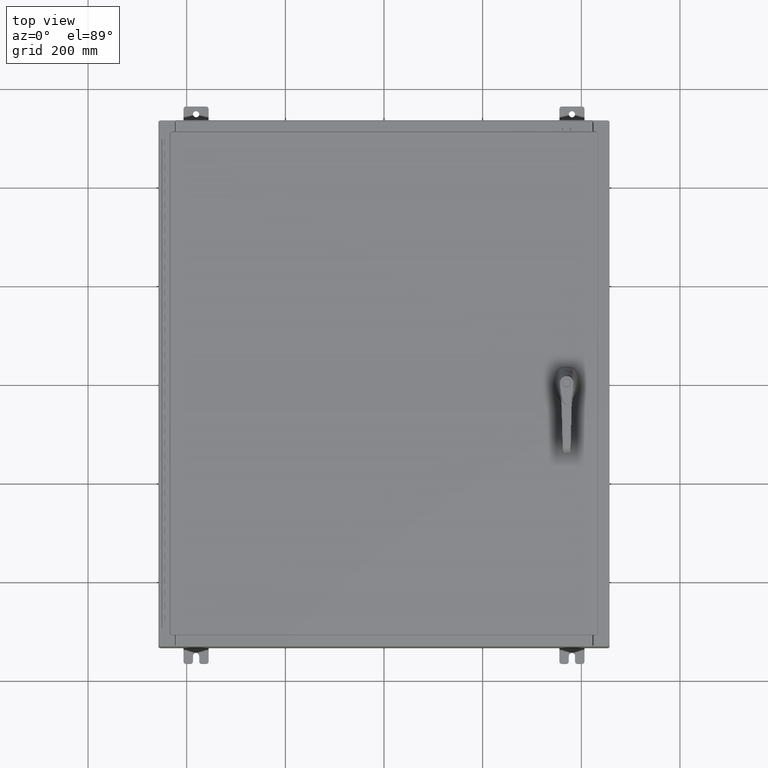
[diagram: clean part render]
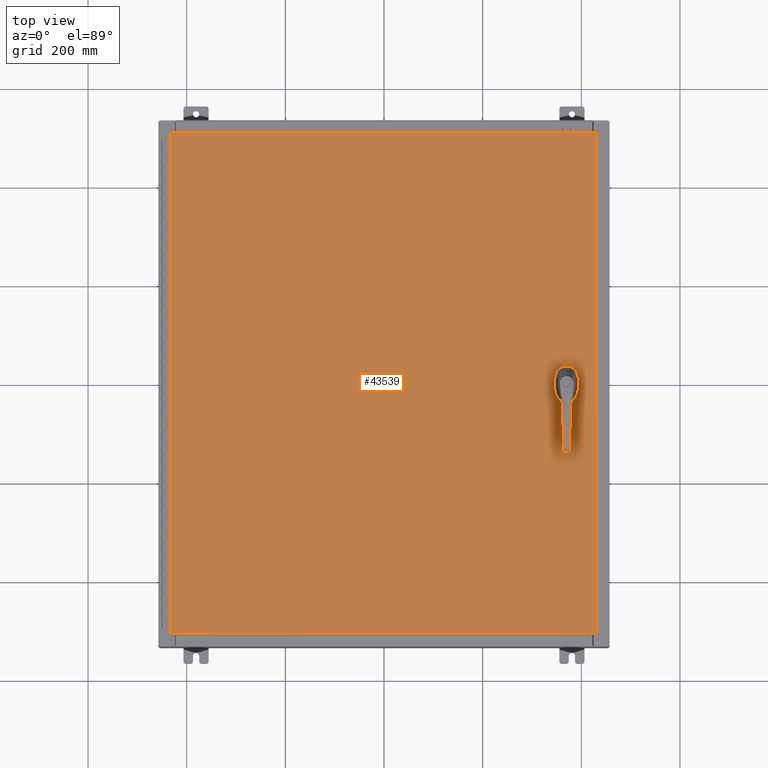
[diagram: same view with one face highlighted and labeled with its STEP entity id]
A machine part, top view. The second image highlights one B-rep face of the part: STEP entity #43539.
In plain terms, the highlighted planar face has unit normal (0, 0, -1).
Its self-contained STEP definition (entity closure, byte-faithful):
#1400 = ORIENTED_EDGE ( 'NONE', *, *, #67639, .F. ) ;
#1800 = AXIS2_PLACEMENT_3D ( 'NONE', #126519, #67121, #7871 ) ;
#2448 = DIRECTION ( 'NONE',  ( 1.000000000000000000, 0.0000000000000000000, 0.0000000000000000000 ) ) ;
#4485 = VERTEX_POINT ( 'NONE', #69236 ) ;
#5855 = VERTEX_POINT ( 'NONE', #42119 ) ;
#5936 = DIRECTION ( 'NONE',  ( 0.0000000000000000000, -1.000000000000000000, 0.0000000000000000000 ) ) ;
#7091 = DIRECTION ( 'NONE',  ( -0.0000000000000000000, 0.0000000000000000000, 1.000000000000000000 ) ) ;
#7871 = DIRECTION ( 'NONE',  ( 1.000000000000000000, 0.0000000000000000000, 0.0000000000000000000 ) ) ;
#8584 = VECTOR ( 'NONE', #76049, 39.37007874015748100 ) ;
#10546 = CARTESIAN_POINT ( 'NONE',  ( 14.37777262924369000, -0.4029999999999252000, 0.0000000000000000000 ) ) ;
#11230 = VERTEX_POINT ( 'NONE', #17718 ) ;
#11715 = EDGE_CURVE ( 'NONE', #51020, #5855, #113930, .T. ) ;
#13262 = ORIENTED_EDGE ( 'NONE', *, *, #35419, .T. ) ;
#14090 = CARTESIAN_POINT ( 'NONE',  ( 16.99029999999999800, -20.00630000000000300, -2.048885995248197400E-016 ) ) ;
#14259 = CARTESIAN_POINT ( 'NONE',  ( 14.37777262924369000, 0.4029999999999252000, 0.0000000000000000000 ) ) ;
#16851 = DIRECTION ( 'NONE',  ( -0.0000000000000000000, 0.0000000000000000000, 1.000000000000000000 ) ) ;
#17718 = CARTESIAN_POINT ( 'NONE',  ( -16.99029999999998400, 20.00630000000000300, -2.048885995248197400E-016 ) ) ;
#19053 = VERTEX_POINT ( 'NONE', #14259 ) ;
#19493 = CIRCLE ( 'NONE', #50019, 0.1715000000000011500 ) ;
#20785 = VECTOR ( 'NONE', #112874, 39.37007874015748100 ) ;
#21198 = AXIS2_PLACEMENT_3D ( 'NONE', #67802, #38364, #107648 ) ;
#21779 = VECTOR ( 'NONE', #5936, 39.37007874015748100 ) ;
#22288 = AXIS2_PLACEMENT_3D ( 'NONE', #121154, #61718, #2448 ) ;
#23208 = VECTOR ( 'NONE', #35380, 39.37007874015748100 ) ;
#24534 = ORIENTED_EDGE ( 'NONE', *, *, #119185, .F. ) ;
#24733 = ORIENTED_EDGE ( 'NONE', *, *, #29600, .F. ) ;
#24790 = FACE_BOUND ( 'NONE', #82503, .T. ) ;
#25105 = CARTESIAN_POINT ( 'NONE',  ( 14.17500000000007400, 0.0000000000000000000, 0.0000000000000000000 ) ) ;
#25442 = CARTESIAN_POINT ( 'NONE',  ( 14.98099999999992700, 8.175868191945441800E-014, 0.0000000000000000000 ) ) ;
#25859 = DIRECTION ( 'NONE',  ( 1.000000000000000000, 0.0000000000000000000, 0.0000000000000000000 ) ) ;
#27027 = CARTESIAN_POINT ( 'NONE',  ( -16.99029999999999800, -20.00630000000000700, 1.946441695485787500E-015 ) ) ;
#27378 = VECTOR ( 'NONE', #122843, 39.37007874015748100 ) ;
#27427 = VERTEX_POINT ( 'NONE', #47869 ) ;
#28001 = CARTESIAN_POINT ( 'NONE',  ( -16.99029999999998400, 20.00630000000000300, -2.048885995248197400E-016 ) ) ;
#28334 = CARTESIAN_POINT ( 'NONE',  ( 14.98099999999992900, -0.2002273707563079800, 0.0000000000000000000 ) ) ;
#28403 = CARTESIAN_POINT ( 'NONE',  ( 14.57799999999999900, 0.0000000000000000000, 0.0000000000000000000 ) ) ;
#29600 = EDGE_CURVE ( 'NONE', #89882, #19053, #126152, .T. ) ;
#31219 = DIRECTION ( 'NONE',  ( -1.000000000000000000, -0.0000000000000000000, -0.0000000000000000000 ) ) ;
#33432 = CARTESIAN_POINT ( 'NONE',  ( 14.40649999999999800, -1.338000000000000100, 0.0000000000000000000 ) ) ;
#33480 = ORIENTED_EDGE ( 'NONE', *, *, #63962, .F. ) ;
#34206 = AXIS2_PLACEMENT_3D ( 'NONE', #66327, #7091, #76345 ) ;
#35380 = DIRECTION ( 'NONE',  ( 5.457491617345625800E-015, -1.000000000000000000, 0.0000000000000000000 ) ) ;
#35419 = EDGE_CURVE ( 'NONE', #5855, #55673, #53645, .T. ) ;
#36221 = CARTESIAN_POINT ( 'NONE',  ( 14.57799999999999900, -1.338000000000000100, 0.0000000000000000000 ) ) ;
#37927 = VERTEX_POINT ( 'NONE', #33432 ) ;
#38312 = DIRECTION ( 'NONE',  ( 1.000000000000000000, 0.0000000000000000000, 0.0000000000000000000 ) ) ;
#38364 = DIRECTION ( 'NONE',  ( 0.0000000000000000000, 0.0000000000000000000, -1.000000000000000000 ) ) ;
#41054 = EDGE_LOOP ( 'NONE', ( #94858, #13262, #90849, #94613 ) ) ;
#42119 = CARTESIAN_POINT ( 'NONE',  ( 16.99029999999999800, -20.00630000000000300, -2.048885995248197400E-016 ) ) ;
#43019 = VECTOR ( 'NONE', #124301, 39.37007874015748100 ) ;
#43539 = ADVANCED_FACE ( 'NONE', ( #24790, #57281, #103788 ), #97728, .F. ) ;
#43713 = CARTESIAN_POINT ( 'NONE',  ( 16.99029999999999800, 20.00630000000000700, 1.946441695485787500E-015 ) ) ;
#46226 = DIRECTION ( 'NONE',  ( 1.000000000000000000, 0.0000000000000000000, 0.0000000000000000000 ) ) ;
#47661 = ORIENTED_EDGE ( 'NONE', *, *, #107779, .F. ) ;
#47869 = CARTESIAN_POINT ( 'NONE',  ( 14.17500000000007400, -0.2002273707563079800, 0.0000000000000000000 ) ) ;
#49560 = LINE ( 'NONE', #25442, #23208 ) ;
#50019 = AXIS2_PLACEMENT_3D ( 'NONE', #36221, #105528, #46226 ) ;
#51020 = VERTEX_POINT ( 'NONE', #27027 ) ;
#53565 = EDGE_CURVE ( 'NONE', #4485, #93993, #49560, .T. ) ;
#53645 = LINE ( 'NONE', #14090, #27378 ) ;
#54419 = EDGE_CURVE ( 'NONE', #4485, #89882, #72607, .T. ) ;
#54860 = CIRCLE ( 'NONE', #1800, 0.4499999999999168000 ) ;
#55673 = VERTEX_POINT ( 'NONE', #43713 ) ;
#57281 = FACE_OUTER_BOUND ( 'NONE', #41054, .T. ) ;
#61718 = DIRECTION ( 'NONE',  ( -0.0000000000000000000, 0.0000000000000000000, 1.000000000000000000 ) ) ;
#63746 = ORIENTED_EDGE ( 'NONE', *, *, #54419, .F. ) ;
#63962 = EDGE_CURVE ( 'NONE', #19053, #99129, #64884, .T. ) ;
#64884 = CIRCLE ( 'NONE', #101226, 0.4499999999999168000 ) ;
#66327 = CARTESIAN_POINT ( 'NONE',  ( 14.57799999999999900, 0.0000000000000000000, 0.0000000000000000000 ) ) ;
#67121 = DIRECTION ( 'NONE',  ( -0.0000000000000000000, 0.0000000000000000000, 1.000000000000000000 ) ) ;
#67639 = EDGE_CURVE ( 'NONE', #37927, #89347, #19493, .T. ) ;
#67802 = CARTESIAN_POINT ( 'NONE',  ( 0.0000000000000000000, 0.0000000000000000000, 0.0000000000000000000 ) ) ;
#69236 = CARTESIAN_POINT ( 'NONE',  ( 14.98099999999992700, 0.2002273707563075900, 0.0000000000000000000 ) ) ;
#69334 = LINE ( 'NONE', #25105, #43019 ) ;
#69353 = ORIENTED_EDGE ( 'NONE', *, *, #123621, .F. ) ;
#70156 = VECTOR ( 'NONE', #25859, 39.37007874015748100 ) ;
#71409 = AXIS2_PLACEMENT_3D ( 'NONE', #28403, #97677, #38312 ) ;
#72607 = CIRCLE ( 'NONE', #34206, 0.4499999999999168000 ) ;
#73798 = CARTESIAN_POINT ( 'NONE',  ( 14.77822737075630900, 0.4029999999999252000, 0.0000000000000000000 ) ) ;
#76049 = DIRECTION ( 'NONE',  ( 1.000000000000000000, -0.0000000000000000000, -0.0000000000000000000 ) ) ;
#76167 = CARTESIAN_POINT ( 'NONE',  ( 14.57799999999999900, 0.0000000000000000000, 0.0000000000000000000 ) ) ;
#76345 = DIRECTION ( 'NONE',  ( 1.000000000000000000, 0.0000000000000000000, 0.0000000000000000000 ) ) ;
#76791 = CIRCLE ( 'NONE', #71409, 0.4499999999999168000 ) ;
#77108 = EDGE_LOOP ( 'NONE', ( #97610, #47661, #95785, #69353, #107581, #33480, #24733, #63746 ) ) ;
#77239 = CIRCLE ( 'NONE', #22288, 0.1715000000000011500 ) ;
#82503 = EDGE_LOOP ( 'NONE', ( #24534, #1400 ) ) ;
#86128 = DIRECTION ( 'NONE',  ( 1.000000000000000000, 0.0000000000000000000, 0.0000000000000000000 ) ) ;
#89347 = VERTEX_POINT ( 'NONE', #111201 ) ;
#89882 = VERTEX_POINT ( 'NONE', #73798 ) ;
#90849 = ORIENTED_EDGE ( 'NONE', *, *, #119826, .T. ) ;
#92688 = LINE ( 'NONE', #100506, #125277 ) ;
#93993 = VERTEX_POINT ( 'NONE', #28334 ) ;
#94613 = ORIENTED_EDGE ( 'NONE', *, *, #102946, .T. ) ;
#94858 = ORIENTED_EDGE ( 'NONE', *, *, #11715, .T. ) ;
#95785 = ORIENTED_EDGE ( 'NONE', *, *, #127969, .F. ) ;
#96101 = CARTESIAN_POINT ( 'NONE',  ( 14.17500000000007400, 0.2002273707563079800, 0.0000000000000000000 ) ) ;
#97610 = ORIENTED_EDGE ( 'NONE', *, *, #53565, .T. ) ;
#97677 = DIRECTION ( 'NONE',  ( -0.0000000000000000000, 0.0000000000000000000, 1.000000000000000000 ) ) ;
#97690 = LINE ( 'NONE', #28001, #21779 ) ;
#97728 = PLANE ( 'NONE',  #21198 ) ;
#99129 = VERTEX_POINT ( 'NONE', #96101 ) ;
#100506 = CARTESIAN_POINT ( 'NONE',  ( 16.99029999999999800, 20.00630000000000700, 1.946441695485787500E-015 ) ) ;
#101226 = AXIS2_PLACEMENT_3D ( 'NONE', #76167, #16851, #86128 ) ;
#102908 = CARTESIAN_POINT ( 'NONE',  ( 0.0000000000000000000, 0.4029999999999252000, 0.0000000000000000000 ) ) ;
#102946 = EDGE_CURVE ( 'NONE', #11230, #51020, #97690, .T. ) ;
#103788 = FACE_BOUND ( 'NONE', #77108, .T. ) ;
#105067 = CARTESIAN_POINT ( 'NONE',  ( 0.0000000000000000000, -0.4029999999999252000, 0.0000000000000000000 ) ) ;
#105528 = DIRECTION ( 'NONE',  ( -0.0000000000000000000, 0.0000000000000000000, 1.000000000000000000 ) ) ;
#105801 = EDGE_CURVE ( 'NONE', #99129, #27427, #69334, .T. ) ;
#107581 = ORIENTED_EDGE ( 'NONE', *, *, #105801, .F. ) ;
#107648 = DIRECTION ( 'NONE',  ( -1.000000000000000000, 0.0000000000000000000, -0.0000000000000000000 ) ) ;
#107779 = EDGE_CURVE ( 'NONE', #119949, #93993, #76791, .T. ) ;
#111201 = CARTESIAN_POINT ( 'NONE',  ( 14.74950000000000100, -1.338000000000000100, 0.0000000000000000000 ) ) ;
#112143 = CARTESIAN_POINT ( 'NONE',  ( 14.77822737075630900, -0.4029999999999252000, 0.0000000000000000000 ) ) ;
#112874 = DIRECTION ( 'NONE',  ( -1.000000000000000000, 0.0000000000000000000, 0.0000000000000000000 ) ) ;
#113930 = LINE ( 'NONE', #125473, #8584 ) ;
#114285 = VERTEX_POINT ( 'NONE', #10546 ) ;
#115160 = LINE ( 'NONE', #105067, #70156 ) ;
#119185 = EDGE_CURVE ( 'NONE', #89347, #37927, #77239, .T. ) ;
#119826 = EDGE_CURVE ( 'NONE', #55673, #11230, #92688, .T. ) ;
#119949 = VERTEX_POINT ( 'NONE', #112143 ) ;
#121154 = CARTESIAN_POINT ( 'NONE',  ( 14.57799999999999900, -1.338000000000000100, 0.0000000000000000000 ) ) ;
#122843 = DIRECTION ( 'NONE',  ( 0.0000000000000000000, 1.000000000000000000, 0.0000000000000000000 ) ) ;
#123621 = EDGE_CURVE ( 'NONE', #27427, #114285, #54860, .T. ) ;
#124301 = DIRECTION ( 'NONE',  ( 0.0000000000000000000, -1.000000000000000000, 0.0000000000000000000 ) ) ;
#125277 = VECTOR ( 'NONE', #31219, 39.37007874015748100 ) ;
#125473 = CARTESIAN_POINT ( 'NONE',  ( -16.99029999999999800, -20.00630000000000700, 1.946441695485787500E-015 ) ) ;
#126152 = LINE ( 'NONE', #102908, #20785 ) ;
#126519 = CARTESIAN_POINT ( 'NONE',  ( 14.57799999999999900, 0.0000000000000000000, 0.0000000000000000000 ) ) ;
#127969 = EDGE_CURVE ( 'NONE', #114285, #119949, #115160, .T. ) ;